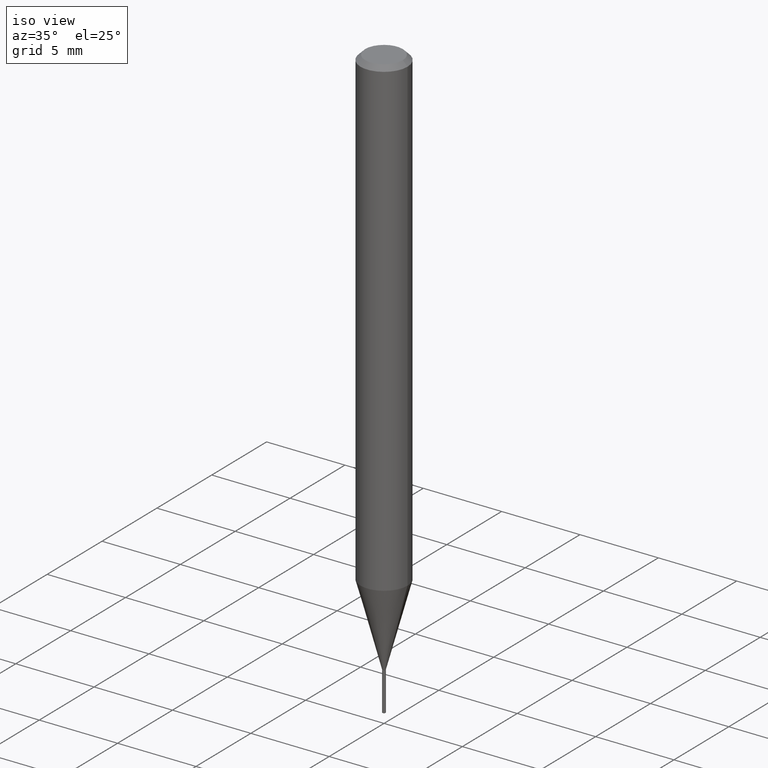
[diagram: clean part render]
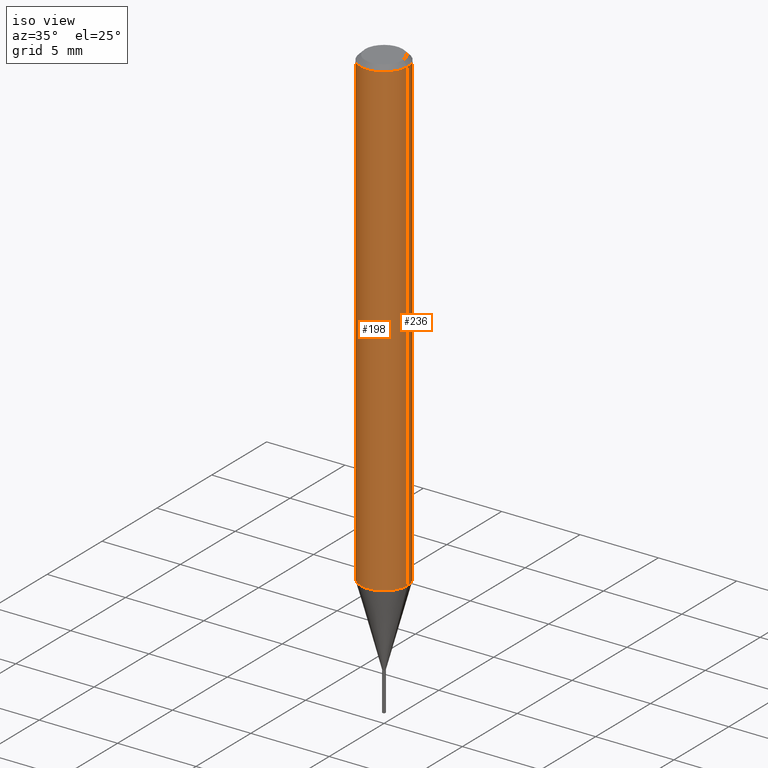
[diagram: same view with one multi-face feature highlighted, each face labeled with its STEP entity id]
A machine part, iso view. The highlighted faces form ONE feature: a constant-radius fillet chain: 2 tangent blend faces with common blend radius 1.4999 mm. The faces share edges in the B-rep.
Their STEP definitions:
[1] entity #198 (Cylinder):
#51 = VERTEX_POINT ( 'NONE', #315 ) ;
#66 = LINE ( 'NONE', #234, #235 ) ;
#80 = VERTEX_POINT ( 'NONE', #305 ) ;
#96 = ORIENTED_EDGE ( 'NONE', *, *, #134, .T. ) ;
#109 = FACE_OUTER_BOUND ( 'NONE', #374, .T. ) ;
#132 = VERTEX_POINT ( 'NONE', #188 ) ;
#134 = EDGE_CURVE ( 'NONE', #80, #51, #66, .T. ) ;
#139 = ORIENTED_EDGE ( 'NONE', *, *, #438, .F. ) ;
#173 = DIRECTION ( 'NONE',  ( 1.000000000000000000, -6.982962677686266711E-15, 4.876176775795936353E-29 ) ) ;
#188 = CARTESIAN_POINT ( 'NONE',  ( -0.05904999999999999832, -1.678852964759526121E-15, -0.01181000000000007218 ) ) ;
#195 = CIRCLE ( 'NONE', #237, 0.05904999999999999832 ) ;
#198 = ADVANCED_FACE ( 'NONE', ( #109 ), #225, .T. ) ;
#219 = AXIS2_PLACEMENT_3D ( 'NONE', #403, #304, #481 ) ;
#224 = CARTESIAN_POINT ( 'NONE',  ( -0.05905000000000013710, -3.736047020373655189E-15, -1.190217590341440701 ) ) ;
#225 = CYLINDRICAL_SURFACE ( 'NONE', #405, 0.05905000000000006771 ) ;
#226 = CARTESIAN_POINT ( 'NONE',  ( 2.888098660104664204E-31, -4.123439461173780263E-17, -0.01181000000000007218 ) ) ;
#234 = CARTESIAN_POINT ( 'NONE',  ( 0.05905000000000006771, -4.123439461173745257E-16, 2.879382386107503723E-30 ) ) ;
#235 = VECTOR ( 'NONE', #411, 39.37007874015748143 ) ;
#237 = AXIS2_PLACEMENT_3D ( 'NONE', #226, #297, #447 ) ;
#239 = CARTESIAN_POINT ( 'NONE',  ( -0.05905000000000006771, 4.195754854663396409E-16, -2.904631170795525045E-30 ) ) ;
#253 = VERTEX_POINT ( 'NONE', #224 ) ;
#297 = DIRECTION ( 'NONE',  ( -2.445468806185136597E-29, 3.491481338843145583E-15, 1.000000000000000000 ) ) ;
#304 = DIRECTION ( 'NONE',  ( -2.445468806185136597E-29, 3.491481338843145583E-15, 1.000000000000000000 ) ) ;
#305 = CARTESIAN_POINT ( 'NONE',  ( 0.05905000000000013710, -4.567966451957370391E-15, -1.190217590341440701 ) ) ;
#315 = CARTESIAN_POINT ( 'NONE',  ( 0.05904999999999999832, -4.535783407291118600E-16, -0.01181000000000007218 ) ) ;
#336 = VECTOR ( 'NONE', #346, 39.37007874015748143 ) ;
#344 = CIRCLE ( 'NONE', #219, 0.05905000000000014404 ) ;
#346 = DIRECTION ( 'NONE',  ( -2.445468806185136877E-29, 3.491481338843145188E-15, 1.000000000000000000 ) ) ;
#352 = LINE ( 'NONE', #239, #336 ) ;
#357 = CARTESIAN_POINT ( 'NONE',  ( 0.000000000000000000, 0.000000000000000000, 0.000000000000000000 ) ) ;
#360 = EDGE_CURVE ( 'NONE', #253, #80, #344, .T. ) ;
#374 = EDGE_LOOP ( 'NONE', ( #442, #445, #96, #139 ) ) ;
#403 = CARTESIAN_POINT ( 'NONE',  ( 2.910639989752832993E-29, -4.155622505839995471E-15, -1.190217590341440701 ) ) ;
#405 = AXIS2_PLACEMENT_3D ( 'NONE', #357, #465, #173 ) ;
#411 = DIRECTION ( 'NONE',  ( -2.445468806185136877E-29, 3.491481338843145188E-15, 1.000000000000000000 ) ) ;
#438 = EDGE_CURVE ( 'NONE', #132, #51, #195, .T. ) ;
#442 = ORIENTED_EDGE ( 'NONE', *, *, #486, .F. ) ;
#445 = ORIENTED_EDGE ( 'NONE', *, *, #360, .T. ) ;
#447 = DIRECTION ( 'NONE',  ( 1.000000000000000000, -6.982962677686266711E-15, 0.000000000000000000 ) ) ;
#465 = DIRECTION ( 'NONE',  ( -2.445468806185136597E-29, 3.491481338843145583E-15, 1.000000000000000000 ) ) ;
#481 = DIRECTION ( 'NONE',  ( 1.000000000000000000, -6.982962677686263555E-15, 0.000000000000000000 ) ) ;
#486 = EDGE_CURVE ( 'NONE', #253, #132, #352, .T. ) ;
[2] entity #236 (Cylinder):
#6 = CARTESIAN_POINT ( 'NONE',  ( 0.000000000000000000, 0.000000000000000000, 0.000000000000000000 ) ) ;
#9 = CIRCLE ( 'NONE', #399, 0.05905000000000014404 ) ;
#12 = ORIENTED_EDGE ( 'NONE', *, *, #274, .T. ) ;
#51 = VERTEX_POINT ( 'NONE', #315 ) ;
#66 = LINE ( 'NONE', #234, #235 ) ;
#80 = VERTEX_POINT ( 'NONE', #305 ) ;
#99 = ORIENTED_EDGE ( 'NONE', *, *, #486, .T. ) ;
#100 = CYLINDRICAL_SURFACE ( 'NONE', #350, 0.05905000000000006771 ) ;
#132 = VERTEX_POINT ( 'NONE', #188 ) ;
#134 = EDGE_CURVE ( 'NONE', #80, #51, #66, .T. ) ;
#188 = CARTESIAN_POINT ( 'NONE',  ( -0.05904999999999999832, -1.678852964759526121E-15, -0.01181000000000007218 ) ) ;
#208 = DIRECTION ( 'NONE',  ( -2.445468806185136597E-29, 3.491481338843145583E-15, 1.000000000000000000 ) ) ;
#209 = CIRCLE ( 'NONE', #309, 0.05904999999999999832 ) ;
#216 = CARTESIAN_POINT ( 'NONE',  ( 2.888098660104664204E-31, -4.123439461173780263E-17, -0.01181000000000007218 ) ) ;
#220 = DIRECTION ( 'NONE',  ( 1.000000000000000000, -6.982962677686266711E-15, 0.000000000000000000 ) ) ;
#224 = CARTESIAN_POINT ( 'NONE',  ( -0.05905000000000013710, -3.736047020373655189E-15, -1.190217590341440701 ) ) ;
#234 = CARTESIAN_POINT ( 'NONE',  ( 0.05905000000000006771, -4.123439461173745257E-16, 2.879382386107503723E-30 ) ) ;
#235 = VECTOR ( 'NONE', #411, 39.37007874015748143 ) ;
#236 = ADVANCED_FACE ( 'NONE', ( #441 ), #100, .T. ) ;
#239 = CARTESIAN_POINT ( 'NONE',  ( -0.05905000000000006771, 4.195754854663396409E-16, -2.904631170795525045E-30 ) ) ;
#253 = VERTEX_POINT ( 'NONE', #224 ) ;
#254 = DIRECTION ( 'NONE',  ( -2.445468806185136597E-29, 3.491481338843145583E-15, 1.000000000000000000 ) ) ;
#274 = EDGE_CURVE ( 'NONE', #80, #253, #9, .T. ) ;
#305 = CARTESIAN_POINT ( 'NONE',  ( 0.05905000000000013710, -4.567966451957370391E-15, -1.190217590341440701 ) ) ;
#306 = CARTESIAN_POINT ( 'NONE',  ( 2.910639989752832993E-29, -4.155622505839995471E-15, -1.190217590341440701 ) ) ;
#309 = AXIS2_PLACEMENT_3D ( 'NONE', #216, #254, #220 ) ;
#315 = CARTESIAN_POINT ( 'NONE',  ( 0.05904999999999999832, -4.535783407291118600E-16, -0.01181000000000007218 ) ) ;
#318 = ORIENTED_EDGE ( 'NONE', *, *, #134, .F. ) ;
#336 = VECTOR ( 'NONE', #346, 39.37007874015748143 ) ;
#346 = DIRECTION ( 'NONE',  ( -2.445468806185136877E-29, 3.491481338843145188E-15, 1.000000000000000000 ) ) ;
#350 = AXIS2_PLACEMENT_3D ( 'NONE', #6, #208, #361 ) ;
#352 = LINE ( 'NONE', #239, #336 ) ;
#358 = ORIENTED_EDGE ( 'NONE', *, *, #395, .F. ) ;
#361 = DIRECTION ( 'NONE',  ( 1.000000000000000000, -6.982962677686266711E-15, 4.876176775795936353E-29 ) ) ;
#380 = DIRECTION ( 'NONE',  ( -2.445468806185136597E-29, 3.491481338843145583E-15, 1.000000000000000000 ) ) ;
#395 = EDGE_CURVE ( 'NONE', #51, #132, #209, .T. ) ;
#399 = AXIS2_PLACEMENT_3D ( 'NONE', #306, #380, #453 ) ;
#411 = DIRECTION ( 'NONE',  ( -2.445468806185136877E-29, 3.491481338843145188E-15, 1.000000000000000000 ) ) ;
#441 = FACE_OUTER_BOUND ( 'NONE', #478, .T. ) ;
#453 = DIRECTION ( 'NONE',  ( 1.000000000000000000, -6.982962677686263555E-15, 0.000000000000000000 ) ) ;
#478 = EDGE_LOOP ( 'NONE', ( #12, #99, #358, #318 ) ) ;
#486 = EDGE_CURVE ( 'NONE', #253, #132, #352, .T. ) ;